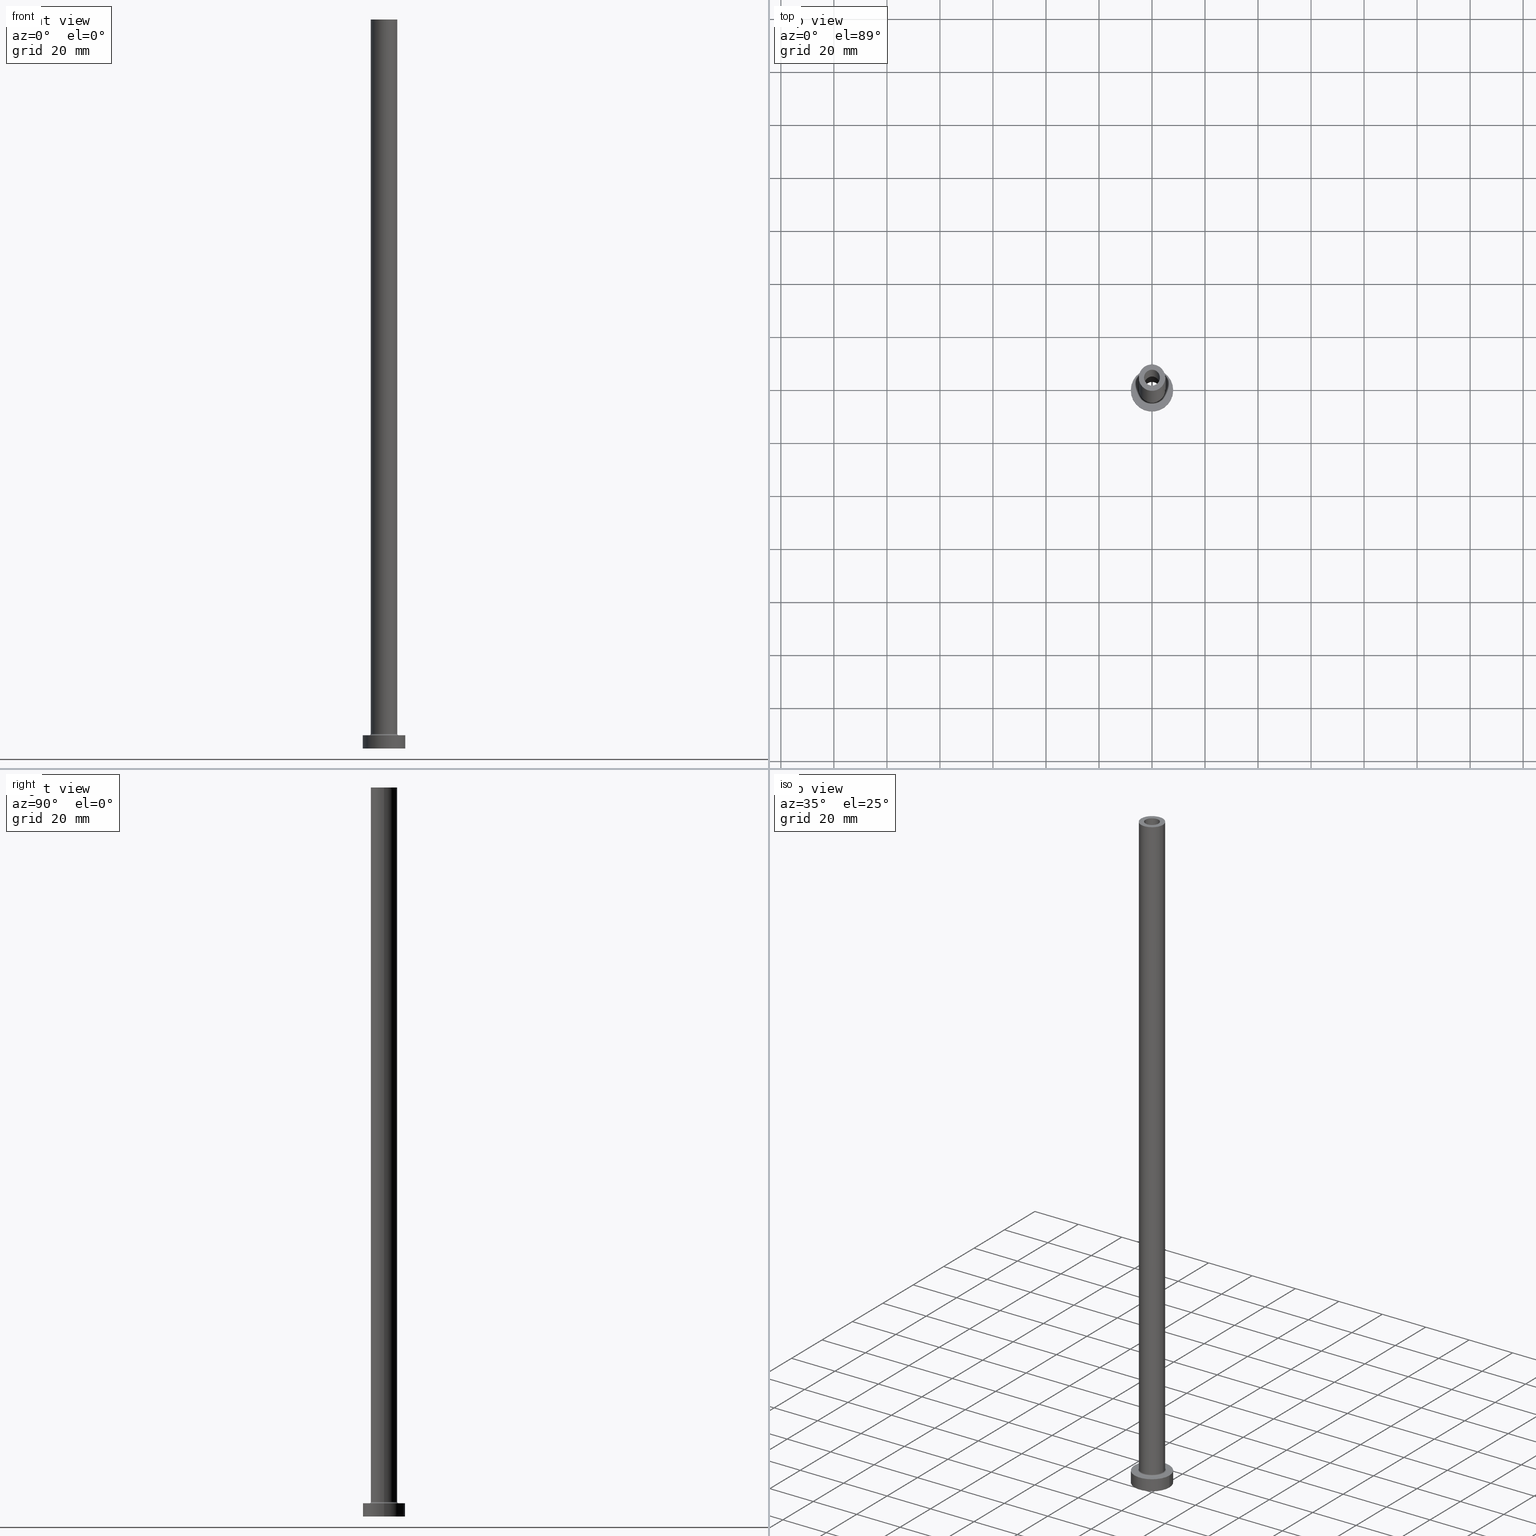
[diagram: canonical four-view strip — front | top / right | iso, engineering-drawing reading convention]
A machine part, canonical four-view strip (front | top / right | iso — engineering-drawing reading convention). The complete STEP part file that produces these views, byte-faithful:
ISO-10303-21;
HEADER;
FILE_DESCRIPTION (( 'STEP AP203' ),
    '1' );
FILE_NAME ('b585.STEP',
    '2023-02-13T15:31:17',
    ( '' ),
    ( '' ),
    'SwSTEP 2.0',
    'SolidWorks 2019',
    '' );
FILE_SCHEMA (( 'CONFIG_CONTROL_DESIGN' ));
ENDSEC;

DATA;
#1 = DIRECTION ( 'NONE',  ( 1.000000000000000000, 0.000000000000000000, 0.000000000000000000 ) ) ;
#2 = VERTEX_POINT ( 'NONE', #42 ) ;
#3 = ORIENTED_EDGE ( 'NONE', *, *, #346, .T. ) ;
#4 = EDGE_CURVE ( 'NONE', #2, #390, #428, .T. ) ;
#5 = DIRECTION ( 'NONE',  ( 0.000000000000000000, 0.000000000000000000, 1.000000000000000000 ) ) ;
#6 = CIRCLE ( 'NONE', #66, 3.000000000000000444 ) ;
#7 = PLANE ( 'NONE',  #285 ) ;
#8 = VERTEX_POINT ( 'NONE', #325 ) ;
#9 = DIRECTION ( 'NONE',  ( -0.000000000000000000, -0.000000000000000000, -1.000000000000000000 ) ) ;
#10 = ORIENTED_EDGE ( 'NONE', *, *, #378, .F. ) ;
#11 = APPROVAL ( #420, 'NEUR�EN�' ) ;
#12 = EDGE_LOOP ( 'NONE', ( #363, #290, #43, #107 ) ) ;
#13 = DIRECTION ( 'NONE',  ( 1.000000000000000000, 0.000000000000000000, 0.000000000000000000 ) ) ;
#14 = ORIENTED_EDGE ( 'NONE', *, *, #149, .F. ) ;
#15 = VECTOR ( 'NONE', #349, 1000.000000000000000 ) ;
#16 = LINE ( 'NONE', #48, #345 ) ;
#17 = CARTESIAN_POINT ( 'NONE',  ( -3.000000000000000444, 0.000000000000000000, 275.0000000000000000 ) ) ;
#18 = ORIENTED_EDGE ( 'NONE', *, *, #76, .F. ) ;
#19 = CALENDAR_DATE ( 2023, 13, 2 ) ;
#20 = CARTESIAN_POINT ( 'NONE',  ( -5.000000000000000000, 0.000000000000000000, 275.0000000000000000 ) ) ;
#21 = PERSON_AND_ORGANIZATION_ROLE ( 'creator' ) ;
#22 = DIRECTION ( 'NONE',  ( 1.000000000000000000, 0.000000000000000000, 0.000000000000000000 ) ) ;
#23 = CARTESIAN_POINT ( 'NONE',  ( 0.000000000000000000, 0.000000000000000000, 230.0000000000000284 ) ) ;
#24 = AXIS2_PLACEMENT_3D ( 'NONE', #30, #279, #456 ) ;
#25 = APPROVAL_STATUS ( 'not_yet_approved' ) ;
#26 = CARTESIAN_POINT ( 'NONE',  ( 0.000000000000000000, 0.000000000000000000, 0.000000000000000000 ) ) ;
#27 = CARTESIAN_POINT ( 'NONE',  ( 3.000000000000000444, 3.673940397442059868E-16, 275.0000000000000000 ) ) ;
#28 = COORDINATED_UNIVERSAL_TIME_OFFSET ( 1, 0, .AHEAD. ) ;
#29 = ORGANIZATION ( 'NEUR�EN�', 'NEUR�EN�', '' ) ;
#30 = CARTESIAN_POINT ( 'NONE',  ( 0.000000000000000000, 0.000000000000000000, 0.000000000000000000 ) ) ;
#31 = EDGE_CURVE ( 'NONE', #256, #53, #424, .T. ) ;
#32 = CIRCLE ( 'NONE', #410, 8.000000000000000000 ) ;
#33 = CC_DESIGN_APPROVAL ( #317, ( #384 ) ) ;
#34 = CARTESIAN_POINT ( 'NONE',  ( 0.000000000000000000, 0.000000000000000000, 5.000000000000000000 ) ) ;
#35 = PERSON ( 'NEUR�EN�', 'NEUR�EN�', 'NEUR�EN�', ('NEUR�EN�'), ('NEUR�EN�'), ('NEUR�EN�') ) ;
#36 = VERTEX_POINT ( 'NONE', #180 ) ;
#37 = VECTOR ( 'NONE', #336, 1000.000000000000000 ) ;
#38 = DIRECTION ( 'NONE',  ( 1.000000000000000000, 0.000000000000000000, 0.000000000000000000 ) ) ;
#39 = VERTEX_POINT ( 'NONE', #147 ) ;
#40 = ADVANCED_FACE ( 'NONE', ( #253, #75 ), #7, .T. ) ;
#41 = DIRECTION ( 'NONE',  ( -1.000000000000000000, 1.224646799147351482E-16, 0.000000000000000000 ) ) ;
#42 = CARTESIAN_POINT ( 'NONE',  ( -8.000000000000000000, 0.000000000000000000, 5.000000000000000000 ) ) ;
#43 = ORIENTED_EDGE ( 'NONE', *, *, #432, .T. ) ;
#44 = CIRCLE ( 'NONE', #24, 3.150000000000000355 ) ;
#45 = ORIENTED_EDGE ( 'NONE', *, *, #355, .T. ) ;
#46 = EDGE_CURVE ( 'NONE', #175, #72, #83, .T. ) ;
#47 = CARTESIAN_POINT ( 'NONE',  ( 5.000000000000000000, 6.123233995736766282E-16, 275.0000000000000000 ) ) ;
#48 = CARTESIAN_POINT ( 'NONE',  ( -3.000000000000000444, 0.000000000000000000, 275.0000000000000000 ) ) ;
#49 = CARTESIAN_POINT ( 'NONE',  ( 0.000000000000000000, 0.000000000000000000, 5.000000000000000000 ) ) ;
#50 = APPLICATION_PROTOCOL_DEFINITION ( 'international standard', 'config_control_design', 1994, #247 ) ;
#51 = DIRECTION ( 'NONE',  ( -0.000000000000000000, -0.000000000000000000, -1.000000000000000000 ) ) ;
#52 = CARTESIAN_POINT ( 'NONE',  ( 0.000000000000000000, 0.000000000000000000, 230.0000000000000284 ) ) ;
#53 = VERTEX_POINT ( 'NONE', #47 ) ;
#54 = PERSON_AND_ORGANIZATION_ROLE ( 'design_supplier' ) ;
#55 = DIRECTION ( 'NONE',  ( 0.000000000000000000, 0.000000000000000000, -1.000000000000000000 ) ) ;
#56 = DIRECTION ( 'NONE',  ( 1.000000000000000000, 0.000000000000000000, 0.000000000000000000 ) ) ;
#57 = ADVANCED_FACE ( 'NONE', ( #296 ), #81, .F. ) ;
#58 = APPROVAL_STATUS ( 'not_yet_approved' ) ;
#59 = CARTESIAN_POINT ( 'NONE',  ( -3.000000000000000444, 0.000000000000000000, 230.0000000000000284 ) ) ;
#60 = DIRECTION ( 'NONE',  ( 1.000000000000000000, 0.000000000000000000, 0.000000000000000000 ) ) ;
#61 = SHAPE_DEFINITION_REPRESENTATION ( #204, #328 ) ;
#62 = DIRECTION ( 'NONE',  ( 0.000000000000000000, 0.000000000000000000, 1.000000000000000000 ) ) ;
#63 = CARTESIAN_POINT ( 'NONE',  ( -5.500000000000000000, 6.735557395310442023E-16, 5.000000000000002665 ) ) ;
#64 = AXIS2_PLACEMENT_3D ( 'NONE', #162, #62, #159 ) ;
#65 = ADVANCED_FACE ( 'NONE', ( #130 ), #87, .T. ) ;
#66 = AXIS2_PLACEMENT_3D ( 'NONE', #77, #219, #38 ) ;
#67 = ADVANCED_FACE ( 'NONE', ( #155, #124 ), #313, .F. ) ;
#68 = AXIS2_PLACEMENT_3D ( 'NONE', #286, #5, #395 ) ;
#69 = ORIENTED_EDGE ( 'NONE', *, *, #173, .T. ) ;
#70 = TOROIDAL_SURFACE ( 'NONE', #95, 5.500000000000000000, 0.5000000000000000000 ) ;
#71 = EDGE_CURVE ( 'NONE', #80, #179, #455, .T. ) ;
#72 = VERTEX_POINT ( 'NONE', #370 ) ;
#73 = DIRECTION ( 'NONE',  ( 1.224646799147353207E-16, 1.000000000000000000, -0.000000000000000000 ) ) ;
#74 = ORIENTED_EDGE ( 'NONE', *, *, #277, .F. ) ;
#75 = FACE_OUTER_BOUND ( 'NONE', #364, .T. ) ;
#76 = EDGE_CURVE ( 'NONE', #327, #8, #353, .T. ) ;
#77 = CARTESIAN_POINT ( 'NONE',  ( 0.000000000000000000, 0.000000000000000000, 275.0000000000000000 ) ) ;
#78 = DIRECTION ( 'NONE',  ( 1.000000000000000000, 0.000000000000000000, 0.000000000000000000 ) ) ;
#79 = CIRCLE ( 'NONE', #326, 0.5000000000000004441 ) ;
#80 = VERTEX_POINT ( 'NONE', #333 ) ;
#81 = CYLINDRICAL_SURFACE ( 'NONE', #138, 3.000000000000000444 ) ;
#82 = ORIENTED_EDGE ( 'NONE', *, *, #251, .F. ) ;
#83 = CIRCLE ( 'NONE', #348, 5.000000000000000000 ) ;
#84 = LINE ( 'NONE', #271, #172 ) ;
#85 = DATE_AND_TIME ( #19, #323 ) ;
#86 = DIRECTION ( 'NONE',  ( -1.000000000000000000, 0.000000000000000000, 0.000000000000000000 ) ) ;
#87 = CYLINDRICAL_SURFACE ( 'NONE', #215, 8.000000000000000000 ) ;
#88 = EDGE_CURVE ( 'NONE', #36, #212, #441, .T. ) ;
#89 = CARTESIAN_POINT ( 'NONE',  ( 0.000000000000000000, 0.000000000000000000, 275.0000000000000000 ) ) ;
#90 = LINE ( 'NONE', #169, #110 ) ;
#91 = SECURITY_CLASSIFICATION_LEVEL ( 'unclassified' ) ;
#92 = FACE_OUTER_BOUND ( 'NONE', #388, .T. ) ;
#93 = CC_DESIGN_PERSON_AND_ORGANIZATION_ASSIGNMENT ( #136, #334, ( #382 ) ) ;
#94 = DIRECTION ( 'NONE',  ( -1.000000000000000000, 0.000000000000000000, 0.000000000000000000 ) ) ;
#95 = AXIS2_PLACEMENT_3D ( 'NONE', #240, #197, #344 ) ;
#96 = DIRECTION ( 'NONE',  ( 0.000000000000000000, 0.000000000000000000, 1.000000000000000000 ) ) ;
#97 = CC_DESIGN_DATE_AND_TIME_ASSIGNMENT ( #305, #158, ( #207 ) ) ;
#98 = AXIS2_PLACEMENT_3D ( 'NONE', #145, #289, #360 ) ;
#99 = CYLINDRICAL_SURFACE ( 'NONE', #373, 5.000000000000000000 ) ;
#100 = CIRCLE ( 'NONE', #399, 8.000000000000000000 ) ;
#101 = DIRECTION ( 'NONE',  ( 0.000000000000000000, 0.000000000000000000, 1.000000000000000000 ) ) ;
#102 = EDGE_CURVE ( 'NONE', #156, #190, #264, .T. ) ;
#103 = CARTESIAN_POINT ( 'NONE',  ( 0.000000000000000000, 0.000000000000000000, 275.0000000000000000 ) ) ;
#104 = EDGE_LOOP ( 'NONE', ( #439, #435, #436, #359 ) ) ;
#105 = CARTESIAN_POINT ( 'NONE',  ( 8.000000000000000000, 9.797174393178825657E-16, 0.000000000000000000 ) ) ;
#106 = AXIS2_PLACEMENT_3D ( 'NONE', #34, #202, #459 ) ;
#107 = ORIENTED_EDGE ( 'NONE', *, *, #371, .T. ) ;
#108 = LOCAL_TIME ( 16, 31, 17.00000000000000000, #192 ) ;
#109 = ORIENTED_EDGE ( 'NONE', *, *, #46, .F. ) ;
#110 = VECTOR ( 'NONE', #307, 1000.000000000000000 ) ;
#111 = CARTESIAN_POINT ( 'NONE',  ( 0.000000000000000000, 0.000000000000000000, 5.500000000000005329 ) ) ;
#112 =( LENGTH_UNIT ( ) NAMED_UNIT ( * ) SI_UNIT ( .MILLI., .METRE. ) );
#113 = ORIENTED_EDGE ( 'NONE', *, *, #216, .T. ) ;
#114 = EDGE_LOOP ( 'NONE', ( #392, #458, #250, #295 ) ) ;
#115 = CIRCLE ( 'NONE', #213, 3.150000000000000355 ) ;
#116 = FACE_OUTER_BOUND ( 'NONE', #433, .T. ) ;
#117 = LINE ( 'NONE', #183, #288 ) ;
#118 = AXIS2_PLACEMENT_3D ( 'NONE', #239, #55, #86 ) ;
#119 = EDGE_LOOP ( 'NONE', ( #318, #45 ) ) ;
#120 = AXIS2_PLACEMENT_3D ( 'NONE', #276, #421, #56 ) ;
#121 = COORDINATED_UNIVERSAL_TIME_OFFSET ( 1, 0, .AHEAD. ) ;
#122 = DIRECTION ( 'NONE',  ( 1.000000000000000000, 0.000000000000000000, 0.000000000000000000 ) ) ;
#123 = EDGE_CURVE ( 'NONE', #53, #175, #90, .T. ) ;
#124 = FACE_OUTER_BOUND ( 'NONE', #354, .T. ) ;
#125 = DIRECTION ( 'NONE',  ( 0.000000000000000000, 0.000000000000000000, -1.000000000000000000 ) ) ;
#126 = DIRECTION ( 'NONE',  ( 0.000000000000000000, 0.000000000000000000, -1.000000000000000000 ) ) ;
#127 = CIRCLE ( 'NONE', #98, 8.000000000000000000 ) ;
#128 = COORDINATED_UNIVERSAL_TIME_OFFSET ( 1, 0, .AHEAD. ) ;
#129 = CARTESIAN_POINT ( 'NONE',  ( -3.150000000000000355, 0.000000000000000000, 0.000000000000000000 ) ) ;
#130 = FACE_OUTER_BOUND ( 'NONE', #114, .T. ) ;
#131 = EDGE_CURVE ( 'NONE', #39, #299, #117, .T. ) ;
#132 = CC_DESIGN_APPROVAL ( #184, ( #207 ) ) ;
#133 = COORDINATED_UNIVERSAL_TIME_OFFSET ( 1, 0, .AHEAD. ) ;
#134 = VECTOR ( 'NONE', #178, 1000.000000000000000 ) ;
#135 = DIRECTION ( 'NONE',  ( 1.000000000000000000, 0.000000000000000000, 0.000000000000000000 ) ) ;
#136 = PERSON_AND_ORGANIZATION ( #35, #29 ) ;
#137 = EDGE_CURVE ( 'NONE', #320, #36, #243, .T. ) ;
#138 = AXIS2_PLACEMENT_3D ( 'NONE', #321, #229, #94 ) ;
#139 = FACE_OUTER_BOUND ( 'NONE', #104, .T. ) ;
#140 = ORIENTED_EDGE ( 'NONE', *, *, #71, .T. ) ;
#141 = PRODUCT_RELATED_PRODUCT_CATEGORY ( 'detail', '', ( #382 ) ) ;
#142 = CARTESIAN_POINT ( 'NONE',  ( 0.000000000000000000, 0.000000000000000000, 5.000000000000000000 ) ) ;
#143 = EDGE_LOOP ( 'NONE', ( #396, #367, #3, #230 ) ) ;
#144 = ORIENTED_EDGE ( 'NONE', *, *, #404, .F. ) ;
#145 = CARTESIAN_POINT ( 'NONE',  ( 0.000000000000000000, 0.000000000000000000, 0.000000000000000000 ) ) ;
#146 = AXIS2_PLACEMENT_3D ( 'NONE', #350, #101, #248 ) ;
#147 = CARTESIAN_POINT ( 'NONE',  ( 8.000000000000000000, 9.797174393178825657E-16, 5.000000000000000000 ) ) ;
#148 = LOCAL_TIME ( 16, 31, 17.00000000000000000, #128 ) ;
#149 = EDGE_CURVE ( 'NONE', #256, #72, #339, .T. ) ;
#150 = CARTESIAN_POINT ( 'NONE',  ( 0.000000000000000000, 0.000000000000000000, 5.000000000000000000 ) ) ;
#151 = ORIENTED_EDGE ( 'NONE', *, *, #355, .F. ) ;
#152 = DIRECTION ( 'NONE',  ( 0.000000000000000000, -1.000000000000000000, 0.000000000000000000 ) ) ;
#153 = DIRECTION ( 'NONE',  ( 0.000000000000000000, 0.000000000000000000, 1.000000000000000000 ) ) ;
#154 = ORIENTED_EDGE ( 'NONE', *, *, #306, .T. ) ;
#155 = FACE_BOUND ( 'NONE', #461, .T. ) ;
#156 = VERTEX_POINT ( 'NONE', #17 ) ;
#157 = ADVANCED_FACE ( 'NONE', ( #194, #263 ), #268, .T. ) ;
#158 = DATE_TIME_ROLE ( 'classification_date' ) ;
#159 = DIRECTION ( 'NONE',  ( 1.000000000000000000, 0.000000000000000000, 0.000000000000000000 ) ) ;
#160 = FACE_OUTER_BOUND ( 'NONE', #287, .T. ) ;
#161 = ORIENTED_EDGE ( 'NONE', *, *, #4, .T. ) ;
#162 = CARTESIAN_POINT ( 'NONE',  ( 0.000000000000000000, 0.000000000000000000, 275.0000000000000000 ) ) ;
#163 = DIRECTION ( 'NONE',  ( -0.000000000000000000, -0.000000000000000000, -1.000000000000000000 ) ) ;
#164 = PERSON_AND_ORGANIZATION ( #35, #29 ) ;
#165 = DIRECTION ( 'NONE',  ( -0.000000000000000000, -0.000000000000000000, -1.000000000000000000 ) ) ;
#166 = DIRECTION ( 'NONE',  ( 0.000000000000000000, 0.000000000000000000, 1.000000000000000000 ) ) ;
#167 = CIRCLE ( 'NONE', #146, 8.000000000000000000 ) ;
#168 = DIRECTION ( 'NONE',  ( 0.000000000000000000, 0.000000000000000000, 1.000000000000000000 ) ) ;
#169 = CARTESIAN_POINT ( 'NONE',  ( 5.000000000000000000, 6.123233995736766282E-16, 275.0000000000000000 ) ) ;
#170 = AXIS2_PLACEMENT_3D ( 'NONE', #312, #301, #443 ) ;
#171 = ADVANCED_FACE ( 'NONE', ( #160 ), #303, .F. ) ;
#172 = VECTOR ( 'NONE', #125, 1000.000000000000000 ) ;
#173 = EDGE_CURVE ( 'NONE', #8, #327, #206, .T. ) ;
#174 = ORIENTED_EDGE ( 'NONE', *, *, #314, .F. ) ;
#175 = VERTEX_POINT ( 'NONE', #450 ) ;
#176 = CARTESIAN_POINT ( 'NONE',  ( -8.000000000000000000, 0.000000000000000000, 5.000000000000000000 ) ) ;
#177 = ADVANCED_FACE ( 'NONE', ( #419 ), #70, .F. ) ;
#178 = DIRECTION ( 'NONE',  ( -0.000000000000000000, -0.000000000000000000, -1.000000000000000000 ) ) ;
#179 = VERTEX_POINT ( 'NONE', #63 ) ;
#180 = CARTESIAN_POINT ( 'NONE',  ( 3.150000000000000355, 3.857637417314163182E-16, 230.0000000000000284 ) ) ;
#181 = EDGE_LOOP ( 'NONE', ( #185, #445 ) ) ;
#182 = DIRECTION ( 'NONE',  ( 0.000000000000000000, 0.000000000000000000, -1.000000000000000000 ) ) ;
#183 = CARTESIAN_POINT ( 'NONE',  ( 8.000000000000000000, 9.797174393178825657E-16, 5.000000000000000000 ) ) ;
#184 = APPROVAL ( #25, 'NEUR�EN�' ) ;
#185 = ORIENTED_EDGE ( 'NONE', *, *, #371, .F. ) ;
#186 = CARTESIAN_POINT ( 'NONE',  ( 0.000000000000000000, 0.000000000000000000, 0.000000000000000000 ) ) ;
#187 = FACE_OUTER_BOUND ( 'NONE', #12, .T. ) ;
#188 = MANIFOLD_SOLID_BREP ( 'Odebrat vysunut�m4', #226 ) ;
#189 = DIRECTION ( 'NONE',  ( 0.000000000000000000, 0.000000000000000000, 1.000000000000000000 ) ) ;
#190 = VERTEX_POINT ( 'NONE', #27 ) ;
#191 = CALENDAR_DATE ( 2023, 13, 2 ) ;
#192 = COORDINATED_UNIVERSAL_TIME_OFFSET ( 1, 0, .AHEAD. ) ;
#193 = DESIGN_CONTEXT ( 'detailed design', #454, 'design' ) ;
#194 = FACE_BOUND ( 'NONE', #255, .T. ) ;
#195 = PERSON_AND_ORGANIZATION ( #35, #29 ) ;
#196 = CARTESIAN_POINT ( 'NONE',  ( 0.000000000000000000, 0.000000000000000000, 0.000000000000000000 ) ) ;
#197 = DIRECTION ( 'NONE',  ( 0.000000000000000000, 0.000000000000000000, 1.000000000000000000 ) ) ;
#198 = AXIS2_PLACEMENT_3D ( 'NONE', #23, #166, #309 ) ;
#199 = CIRCLE ( 'NONE', #64, 5.000000000000000000 ) ;
#200 = PERSON_AND_ORGANIZATION_ROLE ( 'classification_officer' ) ;
#201 = AXIS2_PLACEMENT_3D ( 'NONE', #52, #189, #135 ) ;
#202 = DIRECTION ( 'NONE',  ( -0.000000000000000000, -0.000000000000000000, -1.000000000000000000 ) ) ;
#203 = EDGE_CURVE ( 'NONE', #179, #80, #447, .T. ) ;
#204 = PRODUCT_DEFINITION_SHAPE ( 'NONE', 'NONE',  #384 ) ;
#205 = CARTESIAN_POINT ( 'NONE',  ( 3.000000000000000444, 3.673940397442059868E-16, 275.0000000000000000 ) ) ;
#206 = CIRCLE ( 'NONE', #198, 3.000000000000000444 ) ;
#207 = SECURITY_CLASSIFICATION ( '', '', #91 ) ;
#208 = LINE ( 'NONE', #205, #15 ) ;
#209 = ORIENTED_EDGE ( 'NONE', *, *, #269, .F. ) ;
#210 = TOROIDAL_SURFACE ( 'NONE', #397, 5.500000000000000000, 0.5000000000000000000 ) ;
#211 = DIRECTION ( 'NONE',  ( 0.000000000000000000, 0.000000000000000000, -1.000000000000000000 ) ) ;
#212 = VERTEX_POINT ( 'NONE', #282 ) ;
#213 = AXIS2_PLACEMENT_3D ( 'NONE', #341, #440, #22 ) ;
#214 = ORIENTED_EDGE ( 'NONE', *, *, #306, .F. ) ;
#215 = AXIS2_PLACEMENT_3D ( 'NONE', #49, #163, #242 ) ;
#216 = EDGE_CURVE ( 'NONE', #212, #324, #44, .T. ) ;
#217 = ORIENTED_EDGE ( 'NONE', *, *, #203, .T. ) ;
#218 = ORIENTED_EDGE ( 'NONE', *, *, #432, .F. ) ;
#219 = DIRECTION ( 'NONE',  ( 0.000000000000000000, 0.000000000000000000, 1.000000000000000000 ) ) ;
#220 = ORIENTED_EDGE ( 'NONE', *, *, #245, .T. ) ;
#221 = EDGE_LOOP ( 'NONE', ( #140, #217 ) ) ;
#222 = CYLINDRICAL_SURFACE ( 'NONE', #460, 3.150000000000000355 ) ;
#223 = CC_DESIGN_PERSON_AND_ORGANIZATION_ASSIGNMENT ( #379, #200, ( #207 ) ) ;
#224 = ORIENTED_EDGE ( 'NONE', *, *, #131, .F. ) ;
#225 = ORIENTED_EDGE ( 'NONE', *, *, #71, .F. ) ;
#226 = CLOSED_SHELL ( 'NONE', ( #457, #171, #177, #415, #65, #425, #40, #451, #257, #157, #237, #322, #67, #57 ) ) ;
#227 = CALENDAR_DATE ( 2023, 13, 2 ) ;
#228 = FACE_BOUND ( 'NONE', #181, .T. ) ;
#229 = DIRECTION ( 'NONE',  ( 0.000000000000000000, 0.000000000000000000, -1.000000000000000000 ) ) ;
#230 = ORIENTED_EDGE ( 'NONE', *, *, #173, .F. ) ;
#231 = CALENDAR_DATE ( 2023, 13, 2 ) ;
#232 = PLANE ( 'NONE',  #170 ) ;
#233 = CARTESIAN_POINT ( 'NONE',  ( 0.000000000000000000, 0.000000000000000000, 5.000000000000000000 ) ) ;
#234 = DIRECTION ( 'NONE',  ( 0.000000000000000000, 0.000000000000000000, 1.000000000000000000 ) ) ;
#235 =( NAMED_UNIT ( * ) SI_UNIT ( $, .STERADIAN. ) SOLID_ANGLE_UNIT ( ) );
#236 = CARTESIAN_POINT ( 'NONE',  ( 0.000000000000000000, 0.000000000000000000, 230.0000000000000284 ) ) ;
#237 = ADVANCED_FACE ( 'NONE', ( #423 ), #210, .F. ) ;
#238 = MECHANICAL_CONTEXT ( 'NONE', #247, 'mechanical' ) ;
#239 = CARTESIAN_POINT ( 'NONE',  ( 0.000000000000000000, 0.000000000000000000, 275.0000000000000000 ) ) ;
#240 = CARTESIAN_POINT ( 'NONE',  ( 0.000000000000000000, 0.000000000000000000, 5.500000000000005329 ) ) ;
#241 = APPROVAL_ROLE ( '' ) ;
#242 = DIRECTION ( 'NONE',  ( -1.000000000000000000, 0.000000000000000000, 0.000000000000000000 ) ) ;
#243 = CIRCLE ( 'NONE', #422, 3.150000000000000355 ) ;
#244 = DIRECTION ( 'NONE',  ( 1.000000000000000000, 0.000000000000000000, 0.000000000000000000 ) ) ;
#245 = EDGE_CURVE ( 'NONE', #190, #8, #208, .T. ) ;
#246 = CARTESIAN_POINT ( 'NONE',  ( 0.000000000000000000, 0.000000000000000000, 5.500000000000005329 ) ) ;
#247 = APPLICATION_CONTEXT ( 'configuration controlled 3d designs of mechanical parts and assemblies' ) ;
#248 = DIRECTION ( 'NONE',  ( 1.000000000000000000, 0.000000000000000000, 0.000000000000000000 ) ) ;
#249 = AXIS2_PLACEMENT_3D ( 'NONE', #446, #126, #452 ) ;
#250 = ORIENTED_EDGE ( 'NONE', *, *, #378, .T. ) ;
#251 = EDGE_CURVE ( 'NONE', #2, #39, #167, .T. ) ;
#252 = ORIENTED_EDGE ( 'NONE', *, *, #102, .F. ) ;
#253 = FACE_BOUND ( 'NONE', #221, .T. ) ;
#254 = AXIS2_PLACEMENT_3D ( 'NONE', #233, #405, #60 ) ;
#255 = EDGE_LOOP ( 'NONE', ( #252, #438 ) ) ;
#256 = VERTEX_POINT ( 'NONE', #385 ) ;
#257 = ADVANCED_FACE ( 'NONE', ( #139 ), #99, .T. ) ;
#258 = CYLINDRICAL_SURFACE ( 'NONE', #302, 5.000000000000000000 ) ;
#259 = EDGE_LOOP ( 'NONE', ( #214, #109, #372, #394 ) ) ;
#260 = ORIENTED_EDGE ( 'NONE', *, *, #88, .T. ) ;
#261 = DIRECTION ( 'NONE',  ( -0.000000000000000000, -0.000000000000000000, -1.000000000000000000 ) ) ;
#262 =( GEOMETRIC_REPRESENTATION_CONTEXT ( 3 ) GLOBAL_UNCERTAINTY_ASSIGNED_CONTEXT ( ( #275 ) ) GLOBAL_UNIT_ASSIGNED_CONTEXT ( ( #112, #412, #235 ) ) REPRESENTATION_CONTEXT ( 'NONE', 'WORKASPACE' ) );
#263 = FACE_OUTER_BOUND ( 'NONE', #119, .T. ) ;
#264 = CIRCLE ( 'NONE', #120, 3.000000000000000444 ) ;
#265 = APPROVAL_DATE_TIME ( #340, #317 ) ;
#266 = DIRECTION ( 'NONE',  ( 1.000000000000000000, 0.000000000000000000, -0.000000000000000000 ) ) ;
#267 = PERSON_AND_ORGANIZATION ( #35, #29 ) ;
#268 = PLANE ( 'NONE',  #315 ) ;
#269 = EDGE_CURVE ( 'NONE', #175, #80, #278, .T. ) ;
#270 = PERSON_AND_ORGANIZATION ( #35, #29 ) ;
#271 = CARTESIAN_POINT ( 'NONE',  ( -3.150000000000000355, 0.000000000000000000, 238.9095454429505594 ) ) ;
#272 = DIRECTION ( 'NONE',  ( 0.000000000000000000, 0.000000000000000000, 1.000000000000000000 ) ) ;
#273 = LOCAL_TIME ( 16, 31, 17.00000000000000000, #133 ) ;
#274 = APPROVAL_ROLE ( '' ) ;
#275 = UNCERTAINTY_MEASURE_WITH_UNIT (LENGTH_MEASURE( 1.000000000000000082E-05 ), #112, 'distance_accuracy_value', 'NONE');
#276 = CARTESIAN_POINT ( 'NONE',  ( 0.000000000000000000, 0.000000000000000000, 275.0000000000000000 ) ) ;
#277 = EDGE_CURVE ( 'NONE', #72, #175, #431, .T. ) ;
#278 = CIRCLE ( 'NONE', #386, 0.5000000000000004441 ) ;
#279 = DIRECTION ( 'NONE',  ( -0.000000000000000000, -0.000000000000000000, -1.000000000000000000 ) ) ;
#280 = EDGE_CURVE ( 'NONE', #39, #2, #32, .T. ) ;
#281 = ORIENTED_EDGE ( 'NONE', *, *, #137, .T. ) ;
#282 = CARTESIAN_POINT ( 'NONE',  ( 3.150000000000000355, 3.857637417314163182E-16, 0.000000000000000000 ) ) ;
#283 = ORIENTED_EDGE ( 'NONE', *, *, #137, .F. ) ;
#284 = DIRECTION ( 'NONE',  ( 0.000000000000000000, 0.000000000000000000, 1.000000000000000000 ) ) ;
#285 = AXIS2_PLACEMENT_3D ( 'NONE', #150, #293, #330 ) ;
#286 = CARTESIAN_POINT ( 'NONE',  ( 0.000000000000000000, 0.000000000000000000, 275.0000000000000000 ) ) ;
#287 = EDGE_LOOP ( 'NONE', ( #281, #260, #113, #218 ) ) ;
#288 = VECTOR ( 'NONE', #409, 1000.000000000000000 ) ;
#289 = DIRECTION ( 'NONE',  ( 0.000000000000000000, 0.000000000000000000, 1.000000000000000000 ) ) ;
#290 = ORIENTED_EDGE ( 'NONE', *, *, #404, .T. ) ;
#291 = PRODUCT_DEFINITION_FORMATION_WITH_SPECIFIED_SOURCE ( 'LIBOVOLN�', '', #382, .NOT_KNOWN. ) ;
#292 = CARTESIAN_POINT ( 'NONE',  ( 5.500000000000000000, 0.000000000000000000, 5.500000000000005329 ) ) ;
#293 = DIRECTION ( 'NONE',  ( 0.000000000000000000, 0.000000000000000000, 1.000000000000000000 ) ) ;
#294 = EDGE_CURVE ( 'NONE', #190, #156, #6, .T. ) ;
#295 = ORIENTED_EDGE ( 'NONE', *, *, #4, .F. ) ;
#296 = FACE_OUTER_BOUND ( 'NONE', #143, .T. ) ;
#297 = CARTESIAN_POINT ( 'NONE',  ( -8.000000000000000000, 0.000000000000000000, 0.000000000000000000 ) ) ;
#298 = CARTESIAN_POINT ( 'NONE',  ( 3.150000000000000355, 3.857637417314163182E-16, 238.9095454429505594 ) ) ;
#299 = VERTEX_POINT ( 'NONE', #105 ) ;
#300 = APPROVAL_DATE_TIME ( #442, #184 ) ;
#301 = DIRECTION ( 'NONE',  ( 0.000000000000000000, 0.000000000000000000, 1.000000000000000000 ) ) ;
#302 = AXIS2_PLACEMENT_3D ( 'NONE', #89, #261, #369 ) ;
#303 = CYLINDRICAL_SURFACE ( 'NONE', #249, 3.150000000000000355 ) ;
#304 = EDGE_LOOP ( 'NONE', ( #361, #220, #18, #400 ) ) ;
#305 = DATE_AND_TIME ( #191, #273 ) ;
#306 = EDGE_CURVE ( 'NONE', #72, #179, #79, .T. ) ;
#307 = DIRECTION ( 'NONE',  ( -0.000000000000000000, -0.000000000000000000, -1.000000000000000000 ) ) ;
#308 = DIRECTION ( 'NONE',  ( -1.000000000000000000, 0.000000000000000000, 0.000000000000000000 ) ) ;
#309 = DIRECTION ( 'NONE',  ( 1.000000000000000000, 0.000000000000000000, 0.000000000000000000 ) ) ;
#310 = AXIS2_PLACEMENT_3D ( 'NONE', #358, #429, #1 ) ;
#311 = APPLICATION_PROTOCOL_DEFINITION ( 'international standard', 'config_control_design', 1994, #454 ) ;
#312 = CARTESIAN_POINT ( 'NONE',  ( 0.000000000000000000, 0.000000000000000000, 0.000000000000000000 ) ) ;
#313 = PLANE ( 'NONE',  #406 ) ;
#314 = EDGE_CURVE ( 'NONE', #390, #299, #127, .T. ) ;
#315 = AXIS2_PLACEMENT_3D ( 'NONE', #414, #342, #444 ) ;
#316 = VECTOR ( 'NONE', #380, 1000.000000000000000 ) ;
#317 = APPROVAL ( #58, 'NEUR�EN�' ) ;
#318 = ORIENTED_EDGE ( 'NONE', *, *, #31, .T. ) ;
#319 = CIRCLE ( 'NONE', #413, 3.150000000000000355 ) ;
#320 = VERTEX_POINT ( 'NONE', #365 ) ;
#321 = CARTESIAN_POINT ( 'NONE',  ( 0.000000000000000000, 0.000000000000000000, 275.0000000000000000 ) ) ;
#322 = ADVANCED_FACE ( 'NONE', ( #187 ), #222, .F. ) ;
#323 = LOCAL_TIME ( 16, 31, 17.00000000000000000, #121 ) ;
#324 = VERTEX_POINT ( 'NONE', #129 ) ;
#325 = CARTESIAN_POINT ( 'NONE',  ( 3.000000000000000444, 3.673940397442059868E-16, 230.0000000000000284 ) ) ;
#326 = AXIS2_PLACEMENT_3D ( 'NONE', #391, #73, #41 ) ;
#327 = VERTEX_POINT ( 'NONE', #59 ) ;
#328 = ADVANCED_BREP_SHAPE_REPRESENTATION ( 'b585', ( #188, #393 ), #262 ) ;
#329 = APPROVAL_PERSON_ORGANIZATION ( #347, #184, #274 ) ;
#330 = DIRECTION ( 'NONE',  ( 1.000000000000000000, 0.000000000000000000, -0.000000000000000000 ) ) ;
#331 = ORIENTED_EDGE ( 'NONE', *, *, #46, .T. ) ;
#332 = DIRECTION ( 'NONE',  ( 1.000000000000000000, 0.000000000000000000, 0.000000000000000000 ) ) ;
#333 = CARTESIAN_POINT ( 'NONE',  ( 5.500000000000000000, 0.000000000000000000, 5.000000000000002665 ) ) ;
#334 = PERSON_AND_ORGANIZATION_ROLE ( 'design_owner' ) ;
#335 = DIRECTION ( 'NONE',  ( 0.000000000000000000, 0.000000000000000000, -1.000000000000000000 ) ) ;
#336 = DIRECTION ( 'NONE',  ( -0.000000000000000000, -0.000000000000000000, -1.000000000000000000 ) ) ;
#337 = ORIENTED_EDGE ( 'NONE', *, *, #280, .T. ) ;
#338 = CALENDAR_DATE ( 2023, 13, 2 ) ;
#339 = LINE ( 'NONE', #20, #37 ) ;
#340 = DATE_AND_TIME ( #227, #108 ) ;
#341 = CARTESIAN_POINT ( 'NONE',  ( 0.000000000000000000, 0.000000000000000000, 230.0000000000000284 ) ) ;
#342 = DIRECTION ( 'NONE',  ( 0.000000000000000000, 0.000000000000000000, 1.000000000000000000 ) ) ;
#343 = CARTESIAN_POINT ( 'NONE',  ( 0.000000000000000000, 0.000000000000000000, 238.9095454429505594 ) ) ;
#344 = DIRECTION ( 'NONE',  ( 1.000000000000000000, 0.000000000000000000, 0.000000000000000000 ) ) ;
#345 = VECTOR ( 'NONE', #182, 1000.000000000000000 ) ;
#346 = EDGE_CURVE ( 'NONE', #156, #327, #16, .T. ) ;
#347 = PERSON_AND_ORGANIZATION ( #35, #29 ) ;
#348 = AXIS2_PLACEMENT_3D ( 'NONE', #111, #153, #78 ) ;
#349 = DIRECTION ( 'NONE',  ( 0.000000000000000000, 0.000000000000000000, -1.000000000000000000 ) ) ;
#350 = CARTESIAN_POINT ( 'NONE',  ( 0.000000000000000000, 0.000000000000000000, 5.000000000000000000 ) ) ;
#351 = CC_DESIGN_PERSON_AND_ORGANIZATION_ASSIGNMENT ( #270, #21, ( #384 ) ) ;
#352 = APPROVAL_PERSON_ORGANIZATION ( #164, #11, #448 ) ;
#353 = CIRCLE ( 'NONE', #201, 3.000000000000000444 ) ;
#354 = EDGE_LOOP ( 'NONE', ( #283, #144 ) ) ;
#355 = EDGE_CURVE ( 'NONE', #53, #256, #199, .T. ) ;
#356 = EDGE_LOOP ( 'NONE', ( #224, #82, #161, #430 ) ) ;
#357 = AXIS2_PLACEMENT_3D ( 'NONE', #449, #165, #308 ) ;
#358 = CARTESIAN_POINT ( 'NONE',  ( 0.000000000000000000, 0.000000000000000000, 5.500000000000005329 ) ) ;
#359 = ORIENTED_EDGE ( 'NONE', *, *, #277, .T. ) ;
#360 = DIRECTION ( 'NONE',  ( 1.000000000000000000, 0.000000000000000000, 0.000000000000000000 ) ) ;
#361 = ORIENTED_EDGE ( 'NONE', *, *, #102, .T. ) ;
#362 = CC_DESIGN_PERSON_AND_ORGANIZATION_ASSIGNMENT ( #381, #54, ( #291 ) ) ;
#363 = ORIENTED_EDGE ( 'NONE', *, *, #88, .F. ) ;
#364 = EDGE_LOOP ( 'NONE', ( #407, #337 ) ) ;
#365 = CARTESIAN_POINT ( 'NONE',  ( -3.150000000000000355, 0.000000000000000000, 230.0000000000000284 ) ) ;
#366 = ORIENTED_EDGE ( 'NONE', *, *, #123, .T. ) ;
#367 = ORIENTED_EDGE ( 'NONE', *, *, #294, .T. ) ;
#368 = PERSON_AND_ORGANIZATION_ROLE ( 'creator' ) ;
#369 = DIRECTION ( 'NONE',  ( -1.000000000000000000, 0.000000000000000000, 0.000000000000000000 ) ) ;
#370 = CARTESIAN_POINT ( 'NONE',  ( -5.000000000000000000, 0.000000000000000000, 5.500000000000005329 ) ) ;
#371 = EDGE_CURVE ( 'NONE', #324, #212, #319, .T. ) ;
#372 = ORIENTED_EDGE ( 'NONE', *, *, #269, .T. ) ;
#373 = AXIS2_PLACEMENT_3D ( 'NONE', #103, #9, #437 ) ;
#374 = DATE_AND_TIME ( #231, #148 ) ;
#375 = CYLINDRICAL_SURFACE ( 'NONE', #118, 3.000000000000000444 ) ;
#376 = CARTESIAN_POINT ( 'NONE',  ( 0.000000000000000000, 0.000000000000000000, 230.0000000000000284 ) ) ;
#377 = DIRECTION ( 'NONE',  ( 0.000000000000000000, 0.000000000000000000, 1.000000000000000000 ) ) ;
#378 = EDGE_CURVE ( 'NONE', #299, #390, #100, .T. ) ;
#379 = PERSON_AND_ORGANIZATION ( #35, #29 ) ;
#380 = DIRECTION ( 'NONE',  ( 0.000000000000000000, 0.000000000000000000, -1.000000000000000000 ) ) ;
#381 = PERSON_AND_ORGANIZATION ( #35, #29 ) ;
#382 = PRODUCT ( 'b585', 'b585', '', ( #238 ) ) ;
#383 = LOCAL_TIME ( 16, 31, 17.00000000000000000, #28 ) ;
#384 = PRODUCT_DEFINITION ( 'NEZN�M�', '', #291, #193 ) ;
#385 = CARTESIAN_POINT ( 'NONE',  ( -5.000000000000000000, 0.000000000000000000, 275.0000000000000000 ) ) ;
#386 = AXIS2_PLACEMENT_3D ( 'NONE', #292, #152, #211 ) ;
#387 = CC_DESIGN_SECURITY_CLASSIFICATION ( #207, ( #291 ) ) ;
#388 = EDGE_LOOP ( 'NONE', ( #174, #10 ) ) ;
#389 = CC_DESIGN_PERSON_AND_ORGANIZATION_ASSIGNMENT ( #195, #368, ( #291 ) ) ;
#390 = VERTEX_POINT ( 'NONE', #297 ) ;
#391 = CARTESIAN_POINT ( 'NONE',  ( -5.500000000000000000, 6.735557395310442023E-16, 5.500000000000005329 ) ) ;
#392 = ORIENTED_EDGE ( 'NONE', *, *, #280, .F. ) ;
#393 = AXIS2_PLACEMENT_3D ( 'NONE', #186, #234, #411 ) ;
#394 = ORIENTED_EDGE ( 'NONE', *, *, #203, .F. ) ;
#395 = DIRECTION ( 'NONE',  ( 1.000000000000000000, 0.000000000000000000, 0.000000000000000000 ) ) ;
#396 = ORIENTED_EDGE ( 'NONE', *, *, #245, .F. ) ;
#397 = AXIS2_PLACEMENT_3D ( 'NONE', #246, #96, #244 ) ;
#398 = DIRECTION ( 'NONE',  ( -1.000000000000000000, 0.000000000000000000, 0.000000000000000000 ) ) ;
#399 = AXIS2_PLACEMENT_3D ( 'NONE', #26, #168, #122 ) ;
#400 = ORIENTED_EDGE ( 'NONE', *, *, #346, .F. ) ;
#401 = EDGE_LOOP ( 'NONE', ( #74, #154, #225, #209 ) ) ;
#402 = DATE_TIME_ROLE ( 'creation_date' ) ;
#403 = CYLINDRICAL_SURFACE ( 'NONE', #357, 8.000000000000000000 ) ;
#404 = EDGE_CURVE ( 'NONE', #36, #320, #115, .T. ) ;
#405 = DIRECTION ( 'NONE',  ( -0.000000000000000000, -0.000000000000000000, -1.000000000000000000 ) ) ;
#406 = AXIS2_PLACEMENT_3D ( 'NONE', #236, #377, #266 ) ;
#407 = ORIENTED_EDGE ( 'NONE', *, *, #251, .T. ) ;
#408 = FACE_OUTER_BOUND ( 'NONE', #304, .T. ) ;
#409 = DIRECTION ( 'NONE',  ( -0.000000000000000000, -0.000000000000000000, -1.000000000000000000 ) ) ;
#410 = AXIS2_PLACEMENT_3D ( 'NONE', #142, #284, #427 ) ;
#411 = DIRECTION ( 'NONE',  ( 1.000000000000000000, 0.000000000000000000, 0.000000000000000000 ) ) ;
#412 =( NAMED_UNIT ( * ) PLANE_ANGLE_UNIT ( ) SI_UNIT ( $, .RADIAN. ) );
#413 = AXIS2_PLACEMENT_3D ( 'NONE', #196, #51, #332 ) ;
#414 = CARTESIAN_POINT ( 'NONE',  ( 0.000000000000000000, 0.000000000000000000, 275.0000000000000000 ) ) ;
#415 = ADVANCED_FACE ( 'NONE', ( #116 ), #258, .T. ) ;
#416 = APPROVAL_DATE_TIME ( #374, #11 ) ;
#417 = FACE_OUTER_BOUND ( 'NONE', #356, .T. ) ;
#418 = CC_DESIGN_APPROVAL ( #11, ( #291 ) ) ;
#419 = FACE_OUTER_BOUND ( 'NONE', #401, .T. ) ;
#420 = APPROVAL_STATUS ( 'not_yet_approved' ) ;
#421 = DIRECTION ( 'NONE',  ( 0.000000000000000000, 0.000000000000000000, 1.000000000000000000 ) ) ;
#422 = AXIS2_PLACEMENT_3D ( 'NONE', #376, #272, #13 ) ;
#423 = FACE_OUTER_BOUND ( 'NONE', #259, .T. ) ;
#424 = CIRCLE ( 'NONE', #68, 5.000000000000000000 ) ;
#425 = ADVANCED_FACE ( 'NONE', ( #417 ), #403, .T. ) ;
#426 = ORIENTED_EDGE ( 'NONE', *, *, #76, .T. ) ;
#427 = DIRECTION ( 'NONE',  ( 1.000000000000000000, 0.000000000000000000, 0.000000000000000000 ) ) ;
#428 = LINE ( 'NONE', #176, #134 ) ;
#429 = DIRECTION ( 'NONE',  ( 0.000000000000000000, 0.000000000000000000, 1.000000000000000000 ) ) ;
#430 = ORIENTED_EDGE ( 'NONE', *, *, #314, .T. ) ;
#431 = CIRCLE ( 'NONE', #310, 5.000000000000000000 ) ;
#432 = EDGE_CURVE ( 'NONE', #320, #324, #84, .T. ) ;
#433 = EDGE_LOOP ( 'NONE', ( #151, #366, #331, #14 ) ) ;
#434 = APPROVAL_PERSON_ORGANIZATION ( #267, #317, #241 ) ;
#435 = ORIENTED_EDGE ( 'NONE', *, *, #31, .F. ) ;
#436 = ORIENTED_EDGE ( 'NONE', *, *, #149, .T. ) ;
#437 = DIRECTION ( 'NONE',  ( -1.000000000000000000, 0.000000000000000000, 0.000000000000000000 ) ) ;
#438 = ORIENTED_EDGE ( 'NONE', *, *, #294, .F. ) ;
#439 = ORIENTED_EDGE ( 'NONE', *, *, #123, .F. ) ;
#440 = DIRECTION ( 'NONE',  ( 0.000000000000000000, 0.000000000000000000, 1.000000000000000000 ) ) ;
#441 = LINE ( 'NONE', #298, #316 ) ;
#442 = DATE_AND_TIME ( #338, #383 ) ;
#443 = DIRECTION ( 'NONE',  ( 1.000000000000000000, 0.000000000000000000, -0.000000000000000000 ) ) ;
#444 = DIRECTION ( 'NONE',  ( 1.000000000000000000, 0.000000000000000000, -0.000000000000000000 ) ) ;
#445 = ORIENTED_EDGE ( 'NONE', *, *, #216, .F. ) ;
#446 = CARTESIAN_POINT ( 'NONE',  ( 0.000000000000000000, 0.000000000000000000, 238.9095454429505594 ) ) ;
#447 = CIRCLE ( 'NONE', #106, 5.500000000000000000 ) ;
#448 = APPROVAL_ROLE ( '' ) ;
#449 = CARTESIAN_POINT ( 'NONE',  ( 0.000000000000000000, 0.000000000000000000, 5.000000000000000000 ) ) ;
#450 = CARTESIAN_POINT ( 'NONE',  ( 5.000000000000000000, 6.123233995736766282E-16, 5.500000000000005329 ) ) ;
#451 = ADVANCED_FACE ( 'NONE', ( #228, #92 ), #232, .F. ) ;
#452 = DIRECTION ( 'NONE',  ( -1.000000000000000000, 0.000000000000000000, 0.000000000000000000 ) ) ;
#453 = CC_DESIGN_DATE_AND_TIME_ASSIGNMENT ( #85, #402, ( #384 ) ) ;
#454 = APPLICATION_CONTEXT ( 'configuration controlled 3d designs of mechanical parts and assemblies' ) ;
#455 = CIRCLE ( 'NONE', #254, 5.500000000000000000 ) ;
#456 = DIRECTION ( 'NONE',  ( 1.000000000000000000, 0.000000000000000000, 0.000000000000000000 ) ) ;
#457 = ADVANCED_FACE ( 'NONE', ( #408 ), #375, .F. ) ;
#458 = ORIENTED_EDGE ( 'NONE', *, *, #131, .T. ) ;
#459 = DIRECTION ( 'NONE',  ( 1.000000000000000000, 0.000000000000000000, 0.000000000000000000 ) ) ;
#460 = AXIS2_PLACEMENT_3D ( 'NONE', #343, #335, #398 ) ;
#461 = EDGE_LOOP ( 'NONE', ( #426, #69 ) ) ;
ENDSEC;
END-ISO-10303-21;
